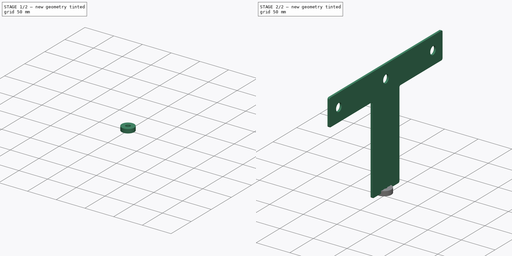
[diagram: build sequence overview — one tinted view per stage of 2, left to right]
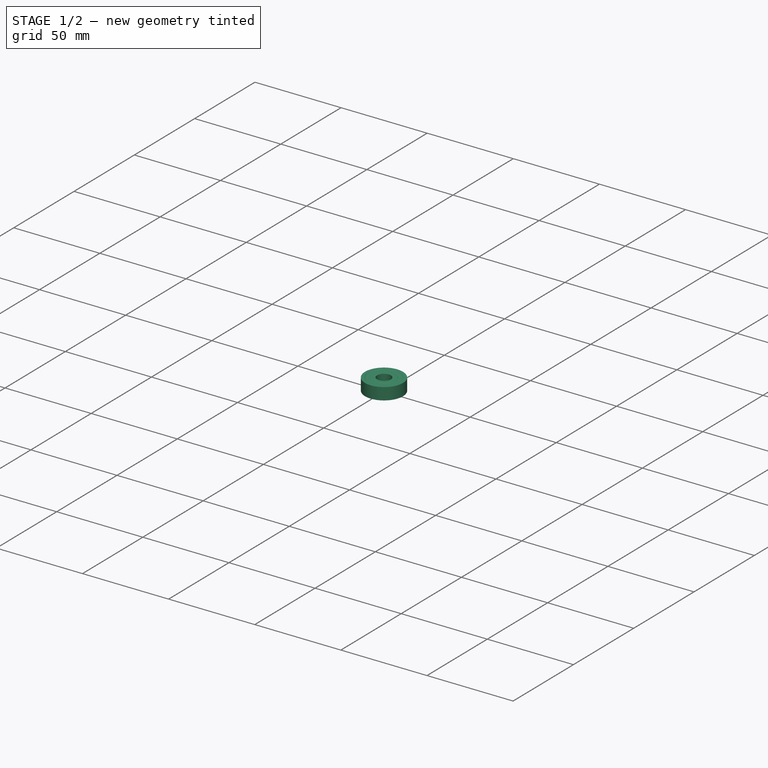
[diagram: stage 1 of 2 — iso view after this stage's code; geometry added in this stage tinted green]
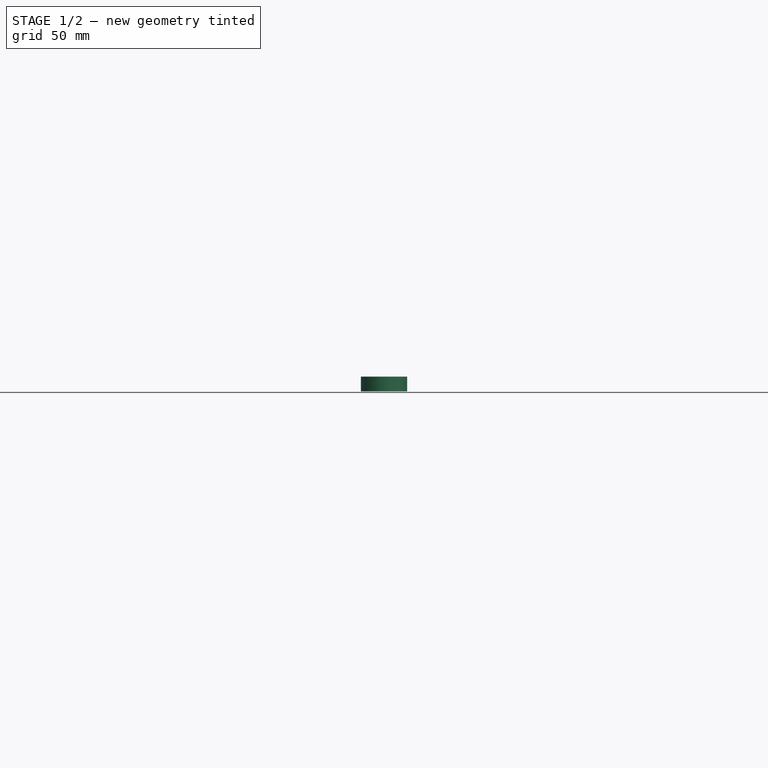
[diagram: stage 1 of 2 — front view after this stage's code; geometry added in this stage tinted green]
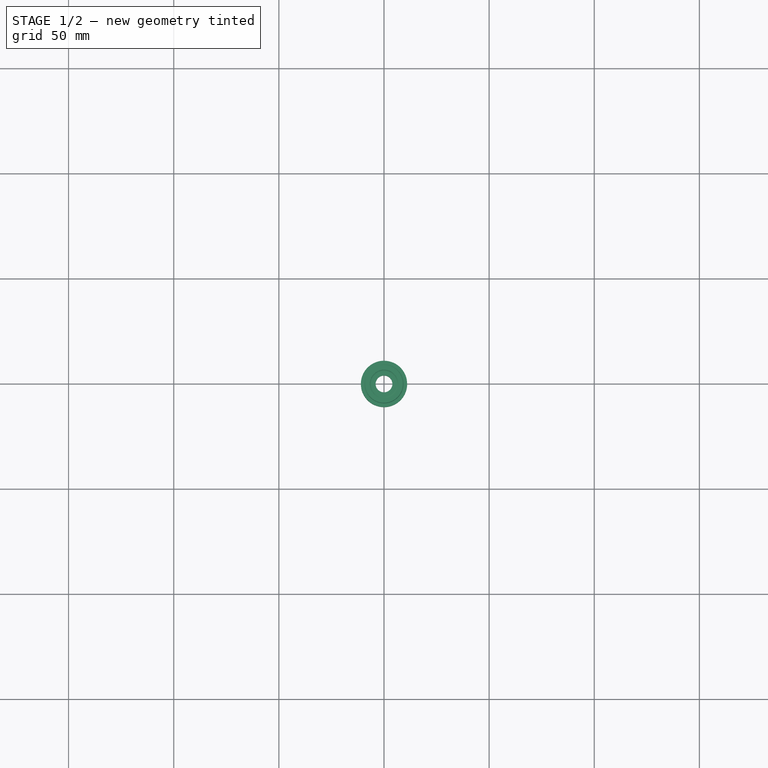
[diagram: stage 1 of 2 — top view after this stage's code; geometry added in this stage tinted green]
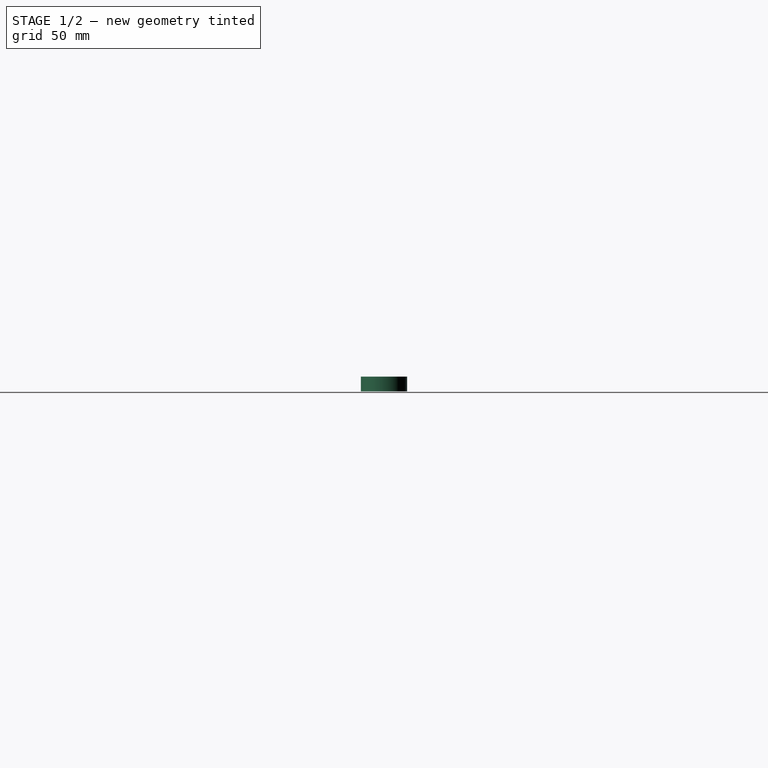
[diagram: stage 1 of 2 — right view after this stage's code; geometry added in this stage tinted green]
FCSTD DOCUMENT  (FreeCAD 0.18.4R)
Label: wide_y
License: All rights reserved
LicenseURL: http://en.wikipedia.org/wiki/All_rights_reserved
objects: Sketcher::SketchObject×3, PartDesign::Pad×2, PartDesign::Body×2, Spreadsheet::Sheet×1, App::Part×1, PartDesign::Revolution×1, PartDesign::Chamfer×1
note: 12 computed .brp shape members not serialized (recipe doc carries the construction recipe); baked Part::Feature solids carry a one-line shape summary decoded from their .brp

FEATURE [PartDesign::Body] Body001
  Group = -> [Sketch001,Pad001]
  Origin = -> Origin002
  Placement = pos=(150,0,0) rot=(0,0,1;0rad)
  Tip = -> Pad001
FEATURE [App::Part] Part
  Group = -> [Body,Body001]
  Origin = -> Origin001
FEATURE [Sketcher::SketchObject] Sketch
  MapMode = 5
  Placement = pos=(0,0,0) rot=(1,0,0;1.5708rad)
  sketch-geometry (12):
    g0: LineSegment StartX=4 StartY=-3.5 StartZ=0 EndX=6.5 EndY=-3.5 EndZ=0
    g1: LineSegment StartX=11 StartY=-3.5 StartZ=0 EndX=11 EndY=3.5 EndZ=0
    g2: LineSegment StartX=11 StartY=3.5 StartZ=0 EndX=9.25 EndY=3.5 EndZ=0
    g3: LineSegment StartX=4 StartY=3.5 StartZ=0 EndX=4 EndY=-3.5 EndZ=0
    g4: LineSegment StartX=6.5 StartY=3.5 StartZ=0 EndX=6.75 EndY=3.25 EndZ=0
    g5: LineSegment StartX=6.75 StartY=3.25 StartZ=0 EndX=9 EndY=3.25 EndZ=0
    g6: LineSegment StartX=9 StartY=3.25 StartZ=0 EndX=9.25 EndY=3.5 EndZ=0
    g7: LineSegment StartX=6.5 StartY=-3.5 StartZ=0 EndX=6.75 EndY=-3.25 EndZ=0
    g8: LineSegment StartX=6.75 StartY=-3.25 StartZ=0 EndX=9 EndY=-3.25 EndZ=0
    g9: LineSegment StartX=9 StartY=-3.25 StartZ=0 EndX=9.25 EndY=-3.5 EndZ=0
    g10: LineSegment StartX=6.5 StartY=3.5 StartZ=0 EndX=4 EndY=3.5 EndZ=0
    g11: LineSegment StartX=9.25 StartY=-3.5 StartZ=0 EndX=11 EndY=-3.5 EndZ=0
  constraints (33):
    c: Coincident(g11,g1)
    c: Coincident(g1,g2)
    c: Coincident(g10,g3)
    c: Coincident(g3,g0)
    c: Horizontal(g0)
    c: Horizontal(g2)
    c: Vertical(g1)
    c: DistanceY(g1) = 7
    c: DistanceX(g0) = 4
    c: DistanceX(g11) = 11
    c: Coincident(g4,g5)
    c: Horizontal(g5)
    c: Coincident(g5,g6)
    c: Coincident(g7,g8)
    c: Horizontal(g8)
    c: Coincident(g8,g9)
    c: Coincident(g2,g6)
    c: Coincident(g10,g4)
    c: Tangent(g2,g10)
    c: Coincident(g0,g7)
    c: Coincident(g11,g9)
    c: Tangent(g0,g11)
    c: Equal(g4,g6)
    c: Equal(g6,g7)
    c: Angle(g10,g4) = 2.35619
    c: DistanceX(g2) = -1.75
    c: DistanceX(g10) = -2.5
    c: Equal(g0,g10)
    c: Equal(g11,g2)
    c: Equal(g9,g7)
    c: Parallel(g9,g4)
    c: DistanceY(g5,g1) = 0.25
    c: Symmetric(g0,g3,g-1)
FEATURE [PartDesign::Revolution] Revolution
  Angle = 360
  Axis = (0,2e-16,1)
  Base = (0,0,0)
  Placement = pos=(0,0,0) rot=(1,0,0;1.5708rad)
  Profile = -> Sketch
  ReferenceAxis = -> Sketch [V_Axis]
  Reversed = true
FEATURE [PartDesign::Chamfer] Chamfer
  Base = -> Revolution [Edge1,Edge3]
  Placement = pos=(0,0,0) rot=(1,0,0;1.5708rad)
  Size = 0.25
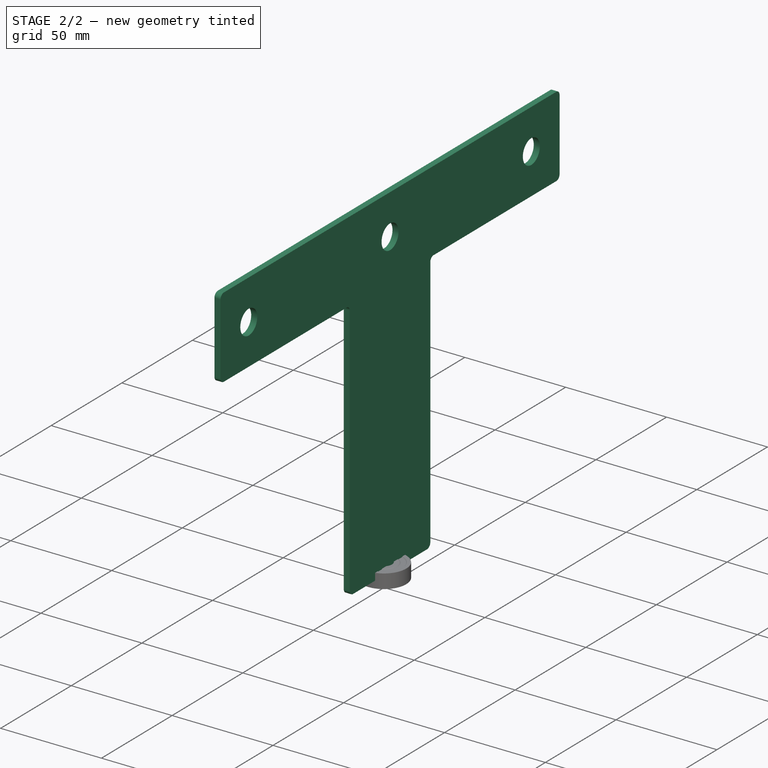
[diagram: stage 2 of 2 — iso view after this stage's code; geometry added in this stage tinted green]
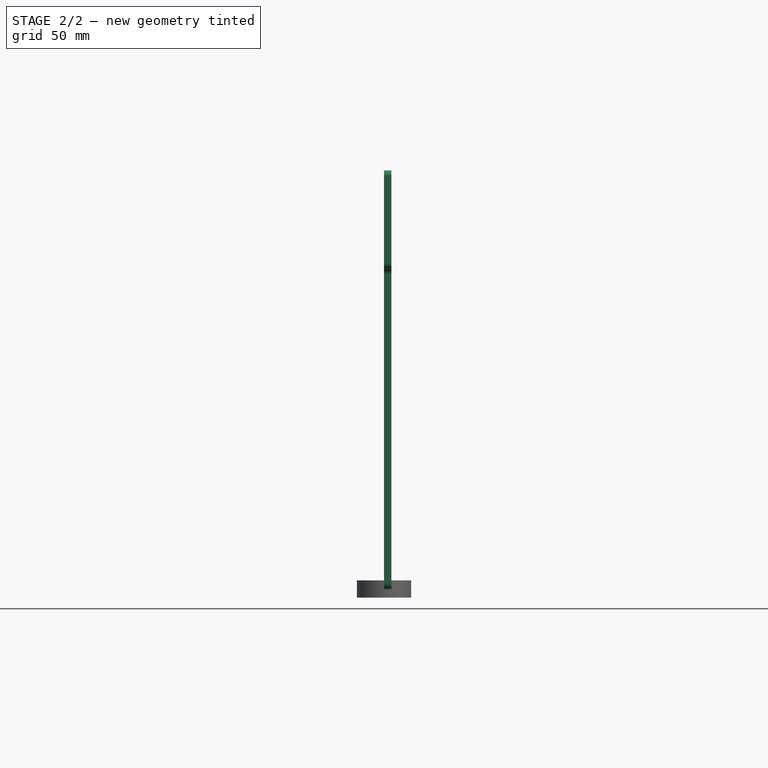
[diagram: stage 2 of 2 — front view after this stage's code; geometry added in this stage tinted green]
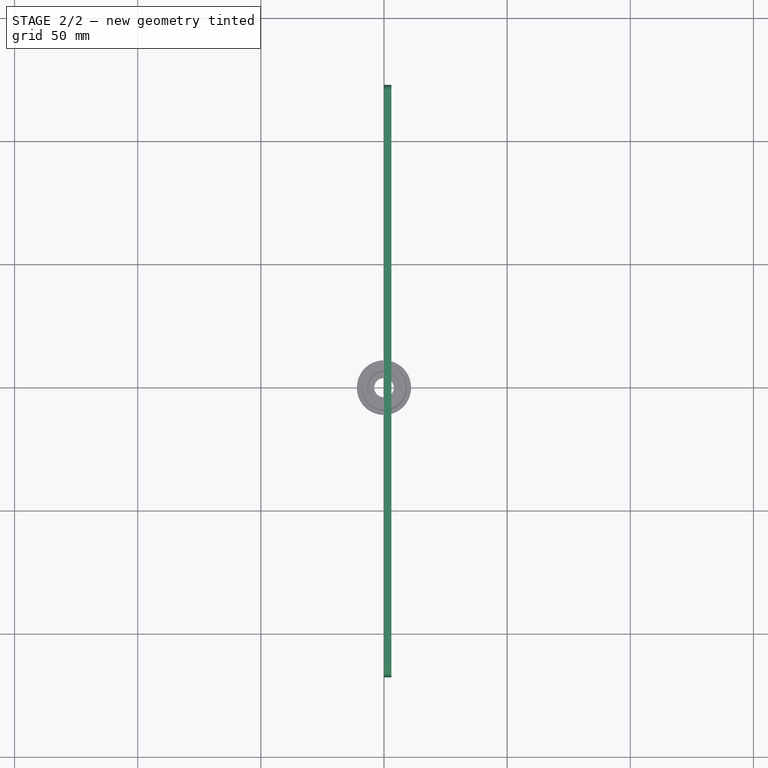
[diagram: stage 2 of 2 — top view after this stage's code; geometry added in this stage tinted green]
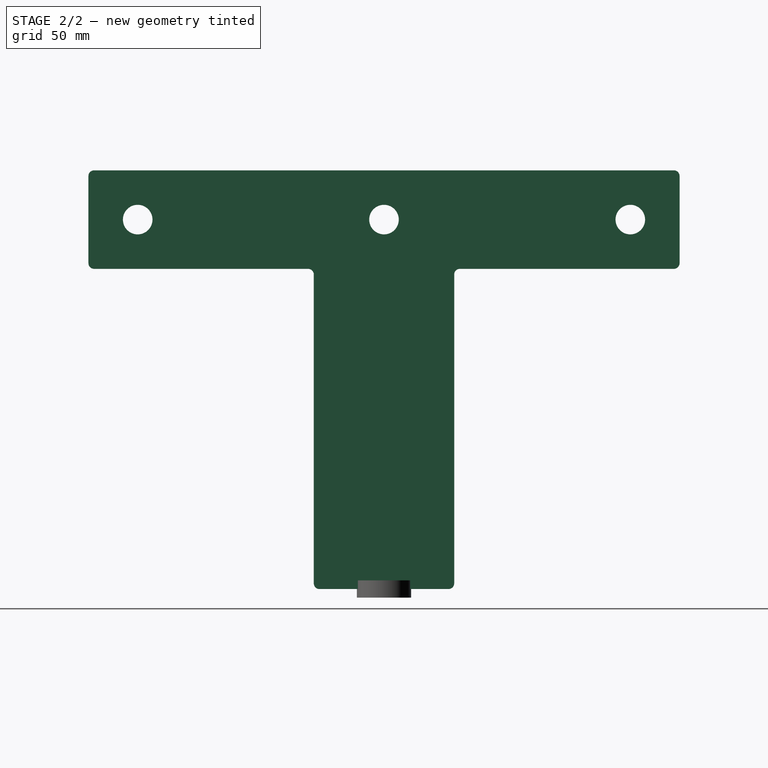
[diagram: stage 2 of 2 — right view after this stage's code; geometry added in this stage tinted green]
FEATURE [Spreadsheet::Sheet] Spreadsheet  label="p"
  cells = A1=rod_r; B1(rod_r)=6; A2=lead_r; B2(lead_r)=4; A3=lead_T_r; B3(lead_T_r)=6; A4=rod_center_dist; B4(rod_center_dist)=100; A5=rod_z_dist; B5(rod_z_dist)=150; A6=rod_side_dist; B6(rod_side_dist)=20; A7=low_part_sz_y; B7(low_part_sz_y)=57; A8=plastic_sz; B8(plastic_sz)=3
FEATURE [Sketcher::SketchObject] Sketch001  label="side sketch001"
  MapMode = 5
  Placement = pos=(0,0,0) rot=(0.57735,0.57735,0.57735;2.0944rad)
  Support = -> [YZ_Plane002]
  expr: Constraints[46] = p.low_part_sz_y
  expr: Constraints[44] = p.rod_z_dist
  expr: Constraints[43] = p.rod_side_dist
  expr: Constraints[32] = p.rod_side_dist
  expr: Constraints[33] = p.rod_side_dist
  expr: Constraints[31] = p.rod_side_dist
  expr: Constraints[6] = p.lead_T_r
  expr: Constraints[5] = p.rod_r
  expr: Constraints[9] = p.rod_center_dist
  sketch-geometry (19):
    g0: LineSegment StartX=-117.7 StartY=170 StartZ=0 EndX=117.7 EndY=170 EndZ=0
    g1: LineSegment StartX=120 StartY=167.7 StartZ=0 EndX=120 EndY=132.3 EndZ=0
    g2: LineSegment StartX=-120 StartY=132.3 StartZ=0 EndX=-120 EndY=167.7 EndZ=0
    g3: LineSegment StartX=28.5 StartY=127.7 StartZ=0 EndX=28.5 EndY=2.3 EndZ=0
    g4: LineSegment StartX=26.2 StartY=4e-16 StartZ=0 EndX=-26.2 EndY=0 EndZ=0
    g5: LineSegment StartX=-28.5 StartY=2.3 StartZ=0 EndX=-28.5 EndY=127.7 EndZ=0
    g6: Circle CenterX=-100 CenterY=150 CenterZ=0 NormalX=0 NormalY=0 NormalZ=1 AngleXU=0 Radius=6
    g7: Circle CenterX=100 CenterY=150 CenterZ=0 NormalX=0 NormalY=0 NormalZ=1 AngleXU=0 Radius=6
    g8: Circle CenterX=0 CenterY=150 CenterZ=0 NormalX=0 NormalY=0 NormalZ=1 AngleXU=0 Radius=6
    g9: LineSegment StartX=-117.7 StartY=130 StartZ=0 EndX=-30.8 EndY=130 EndZ=0
    g10: LineSegment StartX=30.8 StartY=130 StartZ=0 EndX=117.7 EndY=130 EndZ=0
    g11: ArcOfCircle CenterX=-117.7 CenterY=167.7 CenterZ=0 NormalX=0 NormalY=0 NormalZ=1 AngleXU=0 Radius=2.3 StartAngle=1.5708 EndAngle=3.14159
    g12: ArcOfCircle CenterX=-117.7 CenterY=132.3 CenterZ=0 NormalX=0 NormalY=0 NormalZ=1 AngleXU=0 Radius=2.3 StartAngle=3.14159 EndAngle=4.71239
    g13: ArcOfCircle CenterX=117.7 CenterY=132.3 CenterZ=0 NormalX=0 NormalY=0 NormalZ=1 AngleXU=0 Radius=2.3 StartAngle=4.71239 EndAngle=6.28319
    g14: ArcOfCircle CenterX=117.7 CenterY=167.7 CenterZ=0 NormalX=0 NormalY=0 NormalZ=1 AngleXU=0 Radius=2.3 StartAngle=0 EndAngle=1.5708
    g15: ArcOfCircle CenterX=-30.8 CenterY=127.7 CenterZ=0 NormalX=0 NormalY=0 NormalZ=1 AngleXU=0 Radius=2.3 StartAngle=-1.8e-15 EndAngle=1.5708
    g16: ArcOfCircle CenterX=30.8 CenterY=127.7 CenterZ=0 NormalX=0 NormalY=0 NormalZ=1 AngleXU=0 Radius=2.3 StartAngle=1.5708 EndAngle=3.14159
    g17: ArcOfCircle CenterX=-26.2 CenterY=2.3 CenterZ=0 NormalX=0 NormalY=0 NormalZ=1 AngleXU=0 Radius=2.3 StartAngle=3.14159 EndAngle=4.71239
    g18: ArcOfCircle CenterX=26.2 CenterY=2.3 CenterZ=0 NormalX=0 NormalY=0 NormalZ=1 AngleXU=0 Radius=2.3 StartAngle=4.71239 EndAngle=6.28319
  constraints (47):
    c: Horizontal(g0)
    c: Vertical(g1)
    c: Vertical(g2)
    c: Vertical(g3)
    c: Vertical(g5)
    c: Radius(g6) = 6
    c: Radius(g8) = 6
    c: Equal(g7,g6)
    c: Symmetric(g6,g7,g-2)
    c: DistanceX(g-1,g7) = 100
    c: DistanceY(g6,g8) = 0
    c: DistanceX(g-1,g8) = 0
    c: Horizontal(g9)
    c: Horizontal(g10)
    c: Tangent(g0,g11) = 1.5708
    c: Tangent(g2,g11) = 1.5708
    c: Tangent(g2,g12) = 1.5708
    c: Tangent(g9,g12) = -1.5708
    c: Tangent(g10,g13) = -1.5708
    c: Tangent(g1,g13) = 1.5708
    c: Tangent(g0,g14) = 1.5708
    c: Tangent(g1,g14) = 1.5708
    c: Tangent(g9,g15) = 1.5708
    c: Tangent(g5,g15) = -1.5708
    c: Tangent(g3,g16) = -1.5708
    c: Tangent(g10,g16) = 1.5708
    c: Tangent(g5,g17) = 1.5708
    c: Tangent(g4,g17) = 1.5708
    c: Tangent(g4,g18) = 1.5708
    c: Tangent(g3,g18) = 1.5708
    c: Radius(g12) = 2.3
    c: DistanceY(g6,g0) = 20
    c: DistanceY(g9,g6) = 20
    c: DistanceX(g2,g6) = 20
    c: DistanceY(g10,g9) = 0
    c: DistanceY(g5,g3) = 0
    c: Symmetric(g5,g3,g-2)
    c: Equal(g12,g11)
    c: Equal(g11,g15)
    c: Equal(g16,g13)
    c: Equal(g13,g14)
    c: Equal(g14,g18)
    c: Equal(g18,g17)
    c: DistanceX(g7,g1) = 20
    c: DistanceY(g-1,g6) = 150
    c: DistanceY(g4,g-1) = 0
    c: DistanceX(g5,g3) = 57
FEATURE [Sketcher::SketchObject] Sketch002  label="side sketch002"
  MapMode = 5
  Placement = pos=(0,0,0) rot=(0.57735,0.57735,0.57735;2.0944rad)
  Support = -> [YZ_Plane]
  expr: Constraints[46] = p.low_part_sz_y
  expr: Constraints[44] = p.rod_z_dist
  expr: Constraints[43] = p.rod_side_dist
  expr: Constraints[32] = p.rod_side_dist
  expr: Constraints[33] = p.rod_side_dist
  expr: Constraints[31] = p.rod_side_dist
  expr: Constraints[6] = p.lead_T_r
  expr: Constraints[5] = p.rod_r
  expr: Constraints[9] = p.rod_center_dist
  sketch-geometry (19):
    g0: LineSegment StartX=-117.7 StartY=170 StartZ=0 EndX=117.7 EndY=170 EndZ=0
    g1: LineSegment StartX=120 StartY=167.7 StartZ=0 EndX=120 EndY=132.3 EndZ=0
    g2: LineSegment StartX=-120 StartY=132.3 StartZ=0 EndX=-120 EndY=167.7 EndZ=0
    g3: LineSegment StartX=28.5 StartY=127.7 StartZ=0 EndX=28.5 EndY=2.3 EndZ=0
    g4: LineSegment StartX=26.2 StartY=4e-16 StartZ=0 EndX=-26.2 EndY=0 EndZ=0
    g5: LineSegment StartX=-28.5 StartY=2.3 StartZ=0 EndX=-28.5 EndY=127.7 EndZ=0
    g6: Circle CenterX=-100 CenterY=150 CenterZ=0 NormalX=0 NormalY=0 NormalZ=1 AngleXU=0 Radius=6
    g7: Circle CenterX=100 CenterY=150 CenterZ=0 NormalX=0 NormalY=0 NormalZ=1 AngleXU=0 Radius=6
    g8: Circle CenterX=0 CenterY=150 CenterZ=0 NormalX=0 NormalY=0 NormalZ=1 AngleXU=0 Radius=6
    g9: LineSegment StartX=-117.7 StartY=130 StartZ=0 EndX=-30.8 EndY=130 EndZ=0
    g10: LineSegment StartX=30.8 StartY=130 StartZ=0 EndX=117.7 EndY=130 EndZ=0
    g11: ArcOfCircle CenterX=-117.7 CenterY=167.7 CenterZ=0 NormalX=0 NormalY=0 NormalZ=1 AngleXU=0 Radius=2.3 StartAngle=1.5708 EndAngle=3.14159
    g12: ArcOfCircle CenterX=-117.7 CenterY=132.3 CenterZ=0 NormalX=0 NormalY=0 NormalZ=1 AngleXU=0 Radius=2.3 StartAngle=3.14159 EndAngle=4.71239
    g13: ArcOfCircle CenterX=117.7 CenterY=132.3 CenterZ=0 NormalX=0 NormalY=0 NormalZ=1 AngleXU=0 Radius=2.3 StartAngle=4.71239 EndAngle=6.28319
    g14: ArcOfCircle CenterX=117.7 CenterY=167.7 CenterZ=0 NormalX=0 NormalY=0 NormalZ=1 AngleXU=0 Radius=2.3 StartAngle=0 EndAngle=1.5708
    g15: ArcOfCircle CenterX=-30.8 CenterY=127.7 CenterZ=0 NormalX=0 NormalY=0 NormalZ=1 AngleXU=0 Radius=2.3 StartAngle=-1.8e-15 EndAngle=1.5708
    g16: ArcOfCircle CenterX=30.8 CenterY=127.7 CenterZ=0 NormalX=0 NormalY=0 NormalZ=1 AngleXU=0 Radius=2.3 StartAngle=1.5708 EndAngle=3.14159
    g17: ArcOfCircle CenterX=-26.2 CenterY=2.3 CenterZ=0 NormalX=0 NormalY=0 NormalZ=1 AngleXU=0 Radius=2.3 StartAngle=3.14159 EndAngle=4.71239
    g18: ArcOfCircle CenterX=26.2 CenterY=2.3 CenterZ=0 NormalX=0 NormalY=0 NormalZ=1 AngleXU=0 Radius=2.3 StartAngle=4.71239 EndAngle=6.28319
  constraints (47):
    c: Horizontal(g0)
    c: Vertical(g1)
    c: Vertical(g2)
    c: Vertical(g3)
    c: Vertical(g5)
    c: Radius(g6) = 6
    c: Radius(g8) = 6
    c: Equal(g7,g6)
    c: Symmetric(g6,g7,g-2)
    c: DistanceX(g-1,g7) = 100
    c: DistanceY(g6,g8) = 0
    c: DistanceX(g-1,g8) = 0
    c: Horizontal(g9)
    c: Horizontal(g10)
    c: Tangent(g0,g11) = 1.5708
    c: Tangent(g2,g11) = 1.5708
    c: Tangent(g2,g12) = 1.5708
    c: Tangent(g9,g12) = -1.5708
    c: Tangent(g10,g13) = -1.5708
    c: Tangent(g1,g13) = 1.5708
    c: Tangent(g0,g14) = 1.5708
    c: Tangent(g1,g14) = 1.5708
    c: Tangent(g9,g15) = 1.5708
    c: Tangent(g5,g15) = -1.5708
    c: Tangent(g3,g16) = -1.5708
    c: Tangent(g10,g16) = 1.5708
    c: Tangent(g5,g17) = 1.5708
    c: Tangent(g4,g17) = 1.5708
    c: Tangent(g4,g18) = 1.5708
    c: Tangent(g3,g18) = 1.5708
    c: Radius(g12) = 2.3
    c: DistanceY(g6,g0) = 20
    c: DistanceY(g9,g6) = 20
    c: DistanceX(g2,g6) = 20
    c: DistanceY(g10,g9) = 0
    c: DistanceY(g5,g3) = 0
    c: Symmetric(g5,g3,g-2)
    c: Equal(g12,g11)
    c: Equal(g11,g15)
    c: Equal(g16,g13)
    c: Equal(g13,g14)
    c: Equal(g14,g18)
    c: Equal(g18,g17)
    c: DistanceX(g7,g1) = 20
    c: DistanceY(g-1,g6) = 150
    c: DistanceY(g4,g-1) = 0
    c: DistanceX(g5,g3) = 57
FEATURE [PartDesign::Pad] Pad
  Length = 3
  Length2 = 100
  Placement = pos=(0,0,0) rot=(0.57735,0.57735,0.57735;2.0944rad)
  Profile = -> Sketch002
  Type = 0
  expr: Length = p.plastic_sz
FEATURE [PartDesign::Body] Body
  Group = -> [Sketch002,Pad]
  Origin = -> Origin
  Placement = pos=(-150,0,0) rot=(0,0,1;0rad)
  Tip = -> Pad
FEATURE [PartDesign::Pad] Pad001
  Length = 3
  Length2 = 100
  Placement = pos=(0,0,0) rot=(0.57735,0.57735,0.57735;2.0944rad)
  Profile = -> Sketch001
  Type = 0
  expr: Length = p.plastic_sz
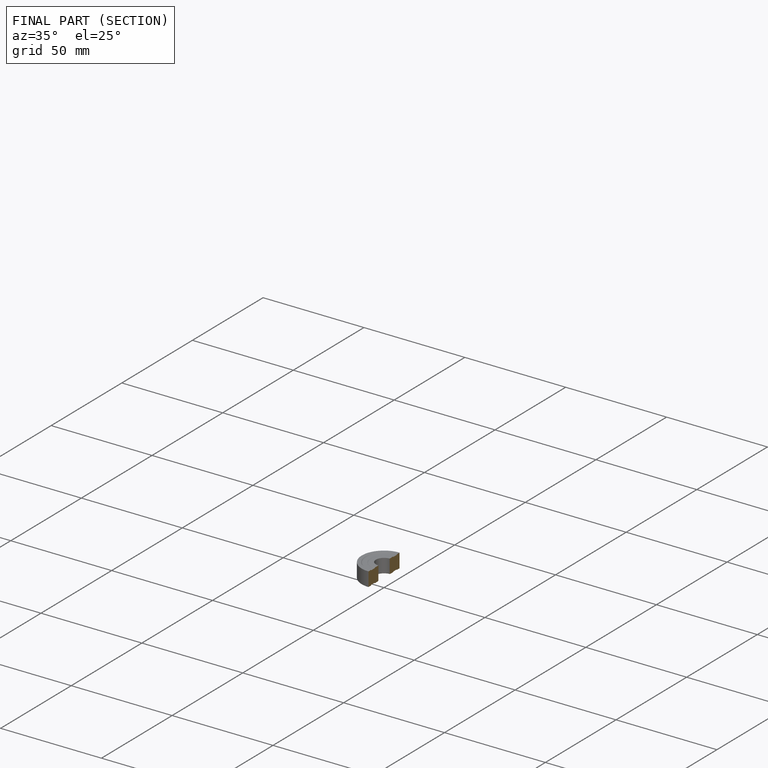
[diagram: finished part — half-section view (interior)]
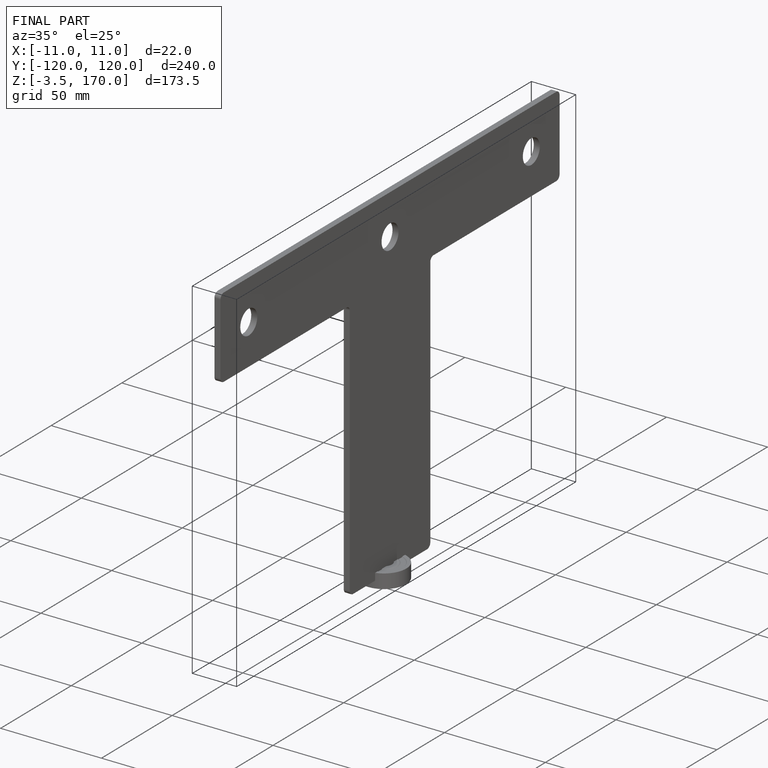
[diagram: finished part — iso view with bounding-box wireframe]
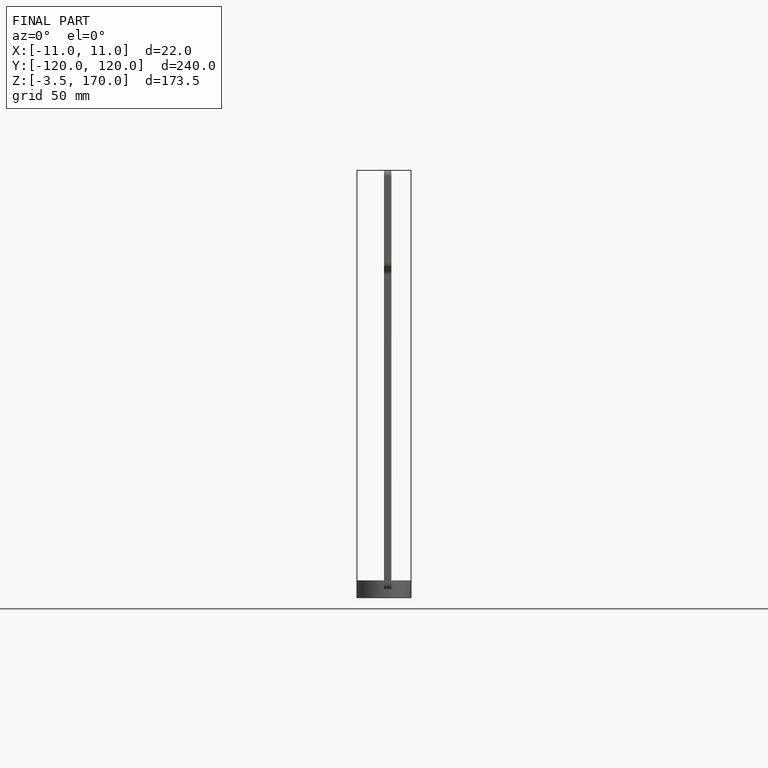
[diagram: finished part — front view with bounding-box wireframe]
